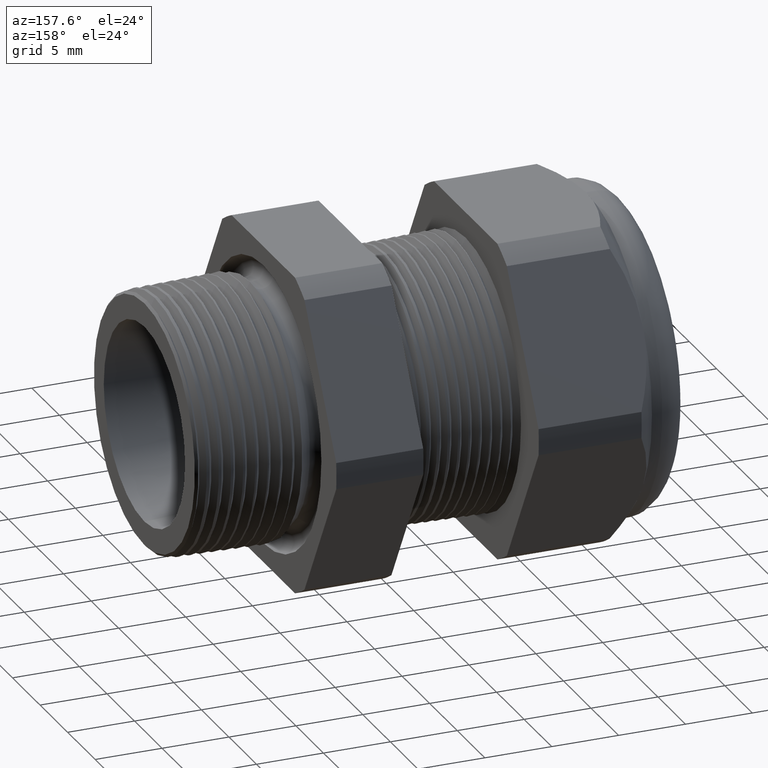
[diagram: clean part render]
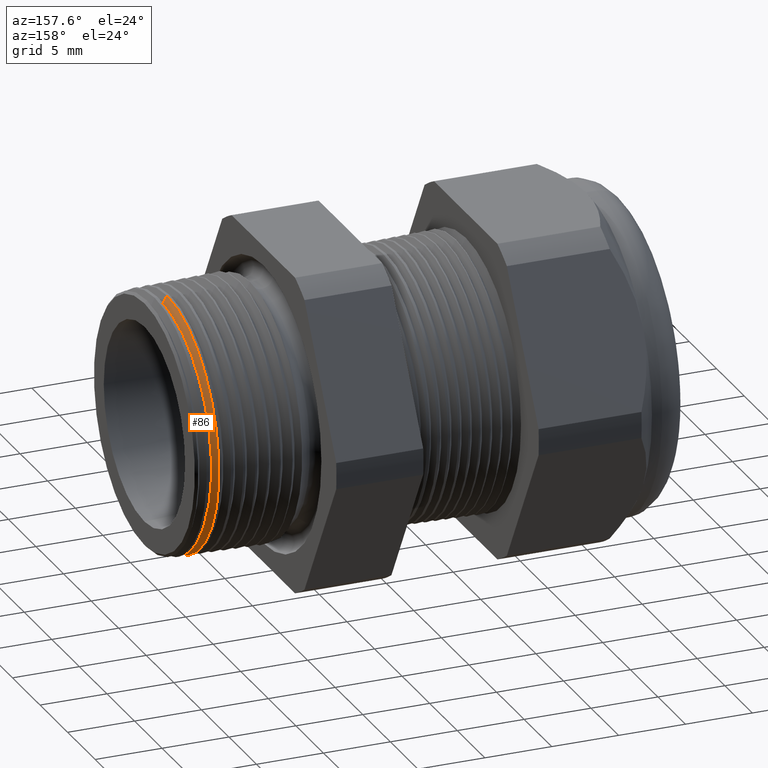
[diagram: same view with one face highlighted and labeled with its STEP entity id]
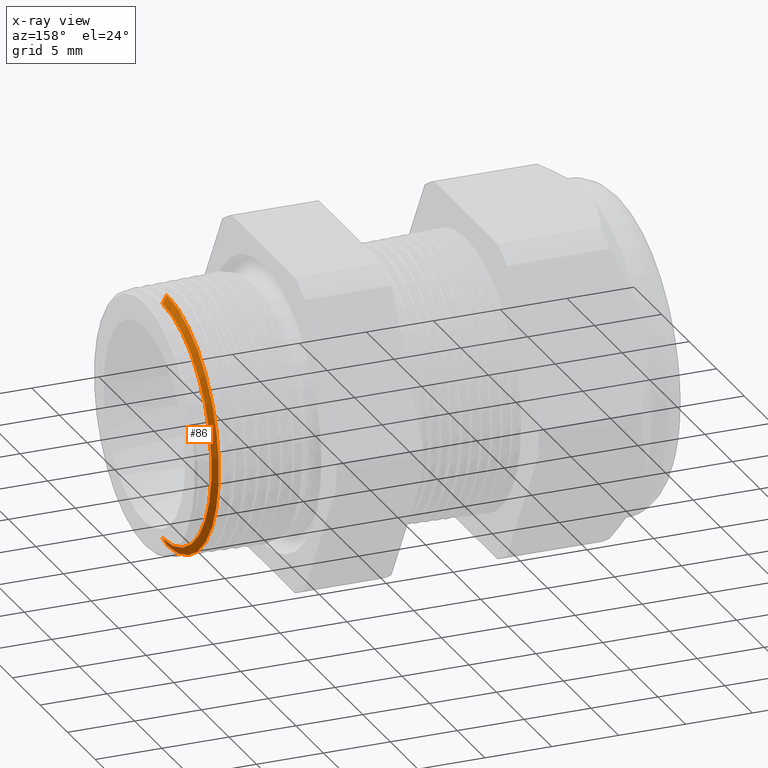
[diagram: x-ray of the same camera — body ghosted, the highlighted face saturated]
A machine part, auxiliary view. The second image highlights one B-rep face of the part: STEP entity #86.
The next image is the same camera in x-ray: the body ghosted, the highlighted face saturated — about 0% of this face is hidden behind the body in this view.
In plain terms, the highlighted conical surface has half-angle 61.5 deg.
Its self-contained STEP definition (entity closure, byte-faithful):
#86 = ADVANCED_FACE ( 'NONE', ( #418 ), #417, .T. ) ;
#92 = VERTEX_POINT ( 'NONE', #406 ) ;
#95 = EDGE_CURVE ( 'NONE', #92, #113, #398, .T. ) ;
#98 = ORIENTED_EDGE ( 'NONE', *, *, #4737, .F. ) ;
#99 = ORIENTED_EDGE ( 'NONE', *, *, #95, .F. ) ;
#100 = EDGE_LOOP ( 'NONE', ( #99, #103, #119, #98 ) ) ;
#101 = VERTEX_POINT ( 'NONE', #451 ) ;
#102 = EDGE_CURVE ( 'NONE', #92, #101, #450, .T. ) ;
#103 = ORIENTED_EDGE ( 'NONE', *, *, #102, .T. ) ;
#113 = VERTEX_POINT ( 'NONE', #431 ) ;
#118 = EDGE_CURVE ( 'NONE', #101, #121, #485, .T. ) ;
#119 = ORIENTED_EDGE ( 'NONE', *, *, #118, .T. ) ;
#121 = VERTEX_POINT ( 'NONE', #479 ) ;
#395 = DIRECTION ( 'NONE',  ( 0.0000000000000000000, 0.0000000000000000000, -1.000000000000000000 ) ) ;
#396 = DIRECTION ( 'NONE',  ( 1.000000000000000000, 0.0000000000000000000, 0.0000000000000000000 ) ) ;
#397 = AXIS2_PLACEMENT_3D ( 'NONE', #403, #396, #395 ) ;
#398 = CIRCLE ( 'NONE', #397, 0.3489649185127733400 ) ;
#403 = CARTESIAN_POINT ( 'NONE',  ( -0.01347073567907519600, 0.0000000000000000000, 0.0000000000000000000 ) ) ;
#406 = CARTESIAN_POINT ( 'NONE',  ( -0.01347073567907519600, 4.414454604251070700E-017, -0.3489649185127733400 ) ) ;
#414 = DIRECTION ( 'NONE',  ( 0.0000000000000000000, 0.0000000000000000000, 1.000000000000000000 ) ) ;
#415 = DIRECTION ( 'NONE',  ( -1.000000000000000000, 0.0000000000000000000, 0.0000000000000000000 ) ) ;
#416 = AXIS2_PLACEMENT_3D ( 'NONE', #424, #415, #414 ) ;
#417 = CONICAL_SURFACE ( 'NONE', #416, 0.3794080363066033600, 1.073377489976501800 ) ;
#418 = FACE_OUTER_BOUND ( 'NONE', #100, .T. ) ;
#424 = CARTESIAN_POINT ( 'NONE',  ( -0.02999999999999995400, 0.0000000000000000000, 0.0000000000000000000 ) ) ;
#431 = CARTESIAN_POINT ( 'NONE',  ( -0.01347073567907519600, 0.0000000000000000000, 0.3489649185127733400 ) ) ;
#447 = DIRECTION ( 'NONE',  ( -0.4771587602596179000, 1.076240564057388100E-016, -0.8788171126619600500 ) ) ;
#448 = VECTOR ( 'NONE', #447, 39.37007874015748900 ) ;
#449 = CARTESIAN_POINT ( 'NONE',  ( -0.02999999999999995400, 4.646408372336645900E-017, -0.3794080363066033600 ) ) ;
#450 = LINE ( 'NONE', #449, #448 ) ;
#451 = CARTESIAN_POINT ( 'NONE',  ( -0.02596160015483819600, 4.556648918328038300E-017, -0.3719702290456226000 ) ) ;
#479 = CARTESIAN_POINT ( 'NONE',  ( -0.02596160015483819600, 0.0000000000000000000, 0.3719702290456226000 ) ) ;
#481 = DIRECTION ( 'NONE',  ( 0.0000000000000000000, 0.0000000000000000000, 1.000000000000000000 ) ) ;
#482 = DIRECTION ( 'NONE',  ( 1.000000000000000000, 0.0000000000000000000, 0.0000000000000000000 ) ) ;
#483 = CARTESIAN_POINT ( 'NONE',  ( -0.02596160015483819600, 0.0000000000000000000, 0.0000000000000000000 ) ) ;
#484 = AXIS2_PLACEMENT_3D ( 'NONE', #483, #482, #481 ) ;
#485 = CIRCLE ( 'NONE', #484, 0.3719702290456226000 ) ;
#2971 = DIRECTION ( 'NONE',  ( -0.4771587602596179000, 0.0000000000000000000, 0.8788171126619600500 ) ) ;
#2972 = VECTOR ( 'NONE', #2971, 39.37007874015748900 ) ;
#2973 = CARTESIAN_POINT ( 'NONE',  ( -0.02999999999999995400, 0.0000000000000000000, 0.3794080363066033600 ) ) ;
#2978 = LINE ( 'NONE', #2973, #2972 ) ;
#4737 = EDGE_CURVE ( 'NONE', #113, #121, #2978, .T. ) ;